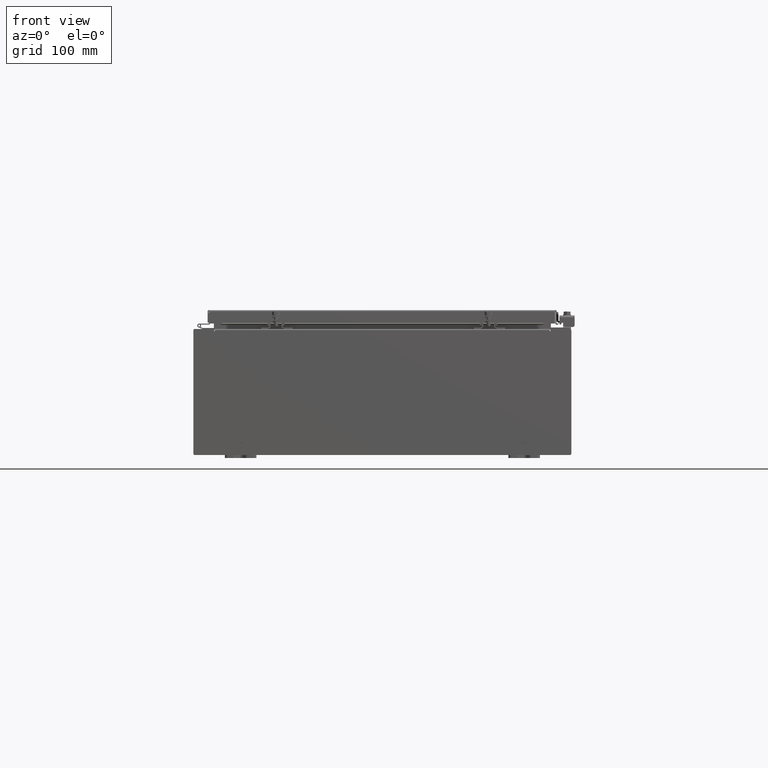
[diagram: clean part render]
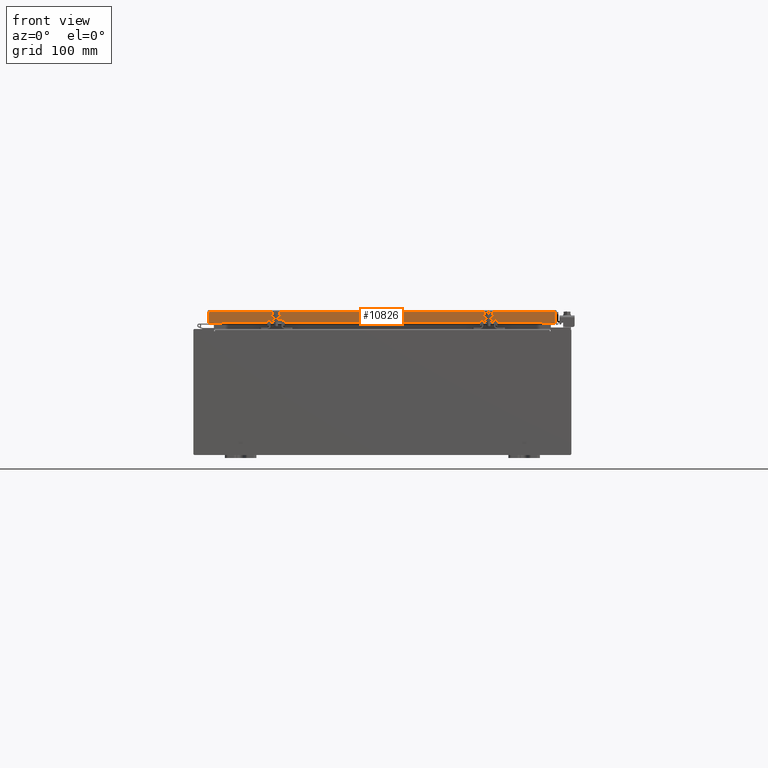
[diagram: same view with one face highlighted and labeled with its STEP entity id]
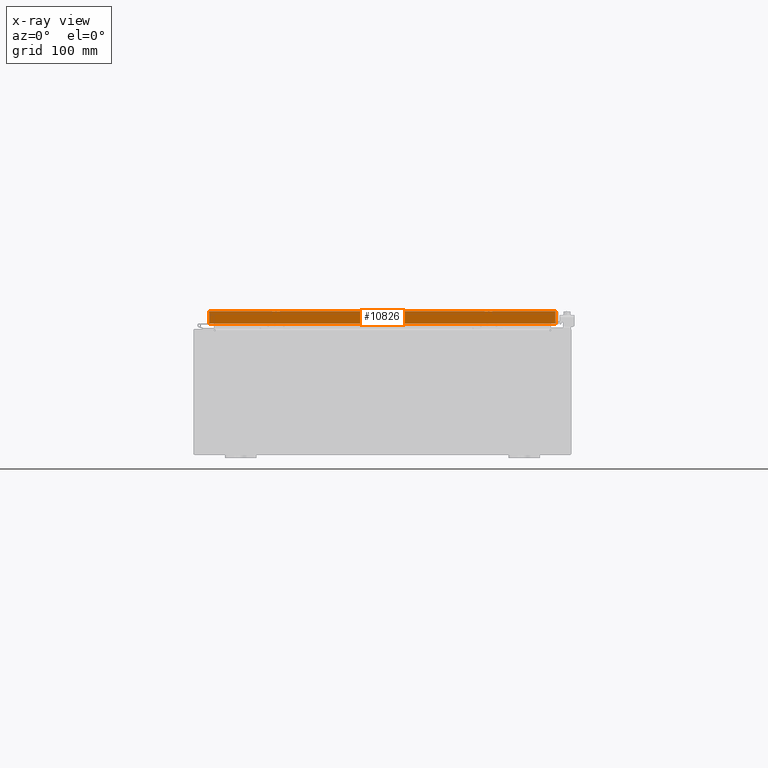
[diagram: x-ray of the same camera — body ghosted, the highlighted face saturated]
A machine part, front view. The second image highlights one B-rep face of the part: STEP entity #10826.
The next image is the same camera in x-ray: the body ghosted, the highlighted face saturated — about 0% of this face is hidden behind the body in this view.
In plain terms, the highlighted planar face has unit normal (-0, 1, -0).
Its self-contained STEP definition (entity closure, byte-faithful):
#2367 = DIRECTION ( 'NONE',  ( -1.000000000000000000, 0.0000000000000000000, 0.0000000000000000000 ) ) ;
#2869 = ORIENTED_EDGE ( 'NONE', *, *, #23087, .T. ) ;
#3084 = LINE ( 'NONE', #17311, #36669 ) ;
#4222 = ORIENTED_EDGE ( 'NONE', *, *, #16363, .F. ) ;
#5149 = VERTEX_POINT ( 'NONE', #23573 ) ;
#7199 = CARTESIAN_POINT ( 'NONE',  ( 5.941356432273445000E-030, -17.09399999999999800, 4.844676449176230100E-014 ) ) ;
#7382 = VECTOR ( 'NONE', #15213, 39.37007874015748100 ) ;
#7584 = ORIENTED_EDGE ( 'NONE', *, *, #20179, .F. ) ;
#8076 = ORIENTED_EDGE ( 'NONE', *, *, #30325, .F. ) ;
#10450 = PLANE ( 'NONE',  #15156 ) ;
#10689 = CARTESIAN_POINT ( 'NONE',  ( 10.98915786437626700, -17.09399999999999800, -0.08769999999999897300 ) ) ;
#10826 = ADVANCED_FACE ( 'NONE', ( #31747 ), #10450, .F. ) ;
#11210 = EDGE_LOOP ( 'NONE', ( #8076, #2869, #7584, #4222, #41823, #13039 ) ) ;
#12481 = VERTEX_POINT ( 'NONE', #10689 ) ;
#13039 = ORIENTED_EDGE ( 'NONE', *, *, #30306, .F. ) ;
#13589 = VERTEX_POINT ( 'NONE', #39703 ) ;
#13736 = DIRECTION ( 'NONE',  ( 0.0000000000000000000, 2.818880942772360500E-015, 1.000000000000000000 ) ) ;
#13753 = VECTOR ( 'NONE', #2367, 39.37007874015748100 ) ;
#14783 = LINE ( 'NONE', #31114, #30100 ) ;
#15156 = AXIS2_PLACEMENT_3D ( 'NONE', #7199, #33264, #13736 ) ;
#15189 = LINE ( 'NONE', #35332, #33518 ) ;
#15213 = DIRECTION ( 'NONE',  ( 0.0000000000000000000, -2.818880942772360500E-015, -1.000000000000000000 ) ) ;
#16363 = EDGE_CURVE ( 'NONE', #13589, #24984, #22424, .T. ) ;
#17311 = CARTESIAN_POINT ( 'NONE',  ( 11.07799999999999600, -17.09399999999999800, -0.8499999999999996400 ) ) ;
#18129 = DIRECTION ( 'NONE',  ( -1.000000000000000000, 4.379057701015053300E-047, 1.233005954894504400E-016 ) ) ;
#18279 = LINE ( 'NONE', #31912, #23852 ) ;
#20179 = EDGE_CURVE ( 'NONE', #24984, #5149, #3084, .T. ) ;
#21685 = CARTESIAN_POINT ( 'NONE',  ( 10.23915786437626200, -17.09399999999999400, -0.8500000000000000900 ) ) ;
#22424 = LINE ( 'NONE', #21685, #13753 ) ;
#23087 = EDGE_CURVE ( 'NONE', #33537, #5149, #33372, .T. ) ;
#23573 = CARTESIAN_POINT ( 'NONE',  ( -10.98915786437627200, -17.09399999999999800, -0.8499999999999969800 ) ) ;
#23852 = VECTOR ( 'NONE', #25508, 39.37007874015748100 ) ;
#24984 = VERTEX_POINT ( 'NONE', #34191 ) ;
#25508 = DIRECTION ( 'NONE',  ( -0.0000000000000000000, -2.818880942772360500E-015, -1.000000000000000000 ) ) ;
#27147 = DIRECTION ( 'NONE',  ( -1.000000000000000000, 4.379057701015053300E-047, 1.233005954894504400E-016 ) ) ;
#27800 = CARTESIAN_POINT ( 'NONE',  ( -10.98915786437627200, -17.09399999999999800, -0.08769999999999787700 ) ) ;
#28187 = CARTESIAN_POINT ( 'NONE',  ( -10.98915786437626900, -17.09399999999999800, 4.844676449176230100E-014 ) ) ;
#28279 = CARTESIAN_POINT ( 'NONE',  ( 10.98915786437626500, -17.09399999999999800, -0.8499999999999996400 ) ) ;
#29611 = VERTEX_POINT ( 'NONE', #28279 ) ;
#30100 = VECTOR ( 'NONE', #18129, 39.37007874015748100 ) ;
#30306 = EDGE_CURVE ( 'NONE', #12481, #29611, #18279, .T. ) ;
#30325 = EDGE_CURVE ( 'NONE', #33537, #12481, #15189, .T. ) ;
#31114 = CARTESIAN_POINT ( 'NONE',  ( 11.07799999999999600, -17.09399999999999800, -0.8499999999999996400 ) ) ;
#31747 = FACE_OUTER_BOUND ( 'NONE', #11210, .T. ) ;
#31912 = CARTESIAN_POINT ( 'NONE',  ( 10.98915786437626500, -17.09399999999999800, -0.07469999999999978000 ) ) ;
#33264 = DIRECTION ( 'NONE',  ( -3.475696988576954900E-031, 1.000000000000000000, -2.818880942772360500E-015 ) ) ;
#33372 = LINE ( 'NONE', #28187, #7382 ) ;
#33518 = VECTOR ( 'NONE', #38578, 39.37007874015748100 ) ;
#33537 = VERTEX_POINT ( 'NONE', #27800 ) ;
#34191 = CARTESIAN_POINT ( 'NONE',  ( -10.23915786437627100, -17.09399999999999400, -0.8500000000000000900 ) ) ;
#35332 = CARTESIAN_POINT ( 'NONE',  ( 11.07799999999999600, -17.09399999999999800, -0.08770000000000007000 ) ) ;
#36669 = VECTOR ( 'NONE', #27147, 39.37007874015748100 ) ;
#38578 = DIRECTION ( 'NONE',  ( 1.000000000000000000, 6.951393977153911800E-032, -9.864047639156036200E-017 ) ) ;
#39703 = CARTESIAN_POINT ( 'NONE',  ( 10.23915786437626200, -17.09399999999999400, -0.8500000000000000900 ) ) ;
#40385 = EDGE_CURVE ( 'NONE', #29611, #13589, #14783, .T. ) ;
#41823 = ORIENTED_EDGE ( 'NONE', *, *, #40385, .F. ) ;